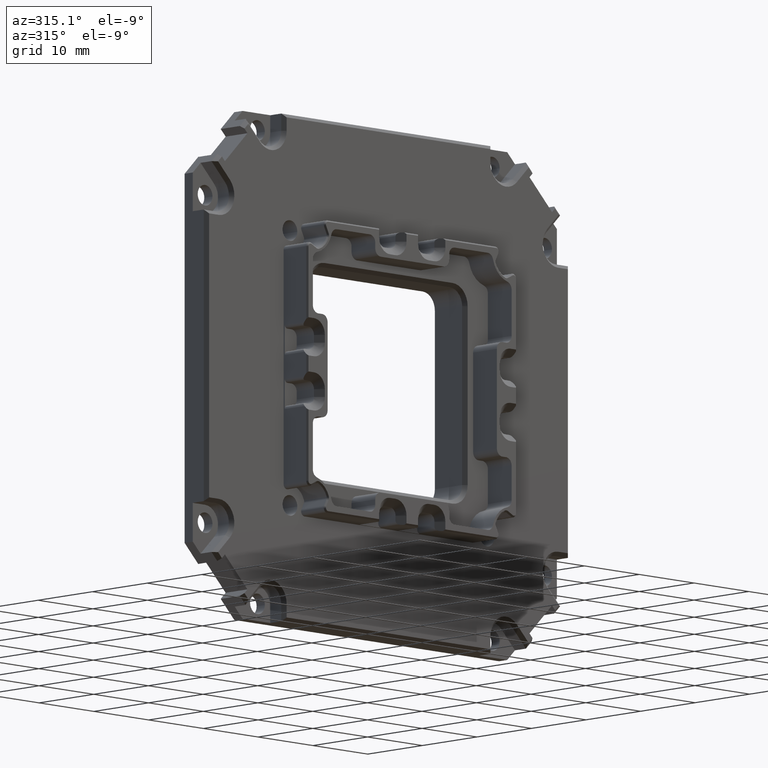
[diagram: clean part render]
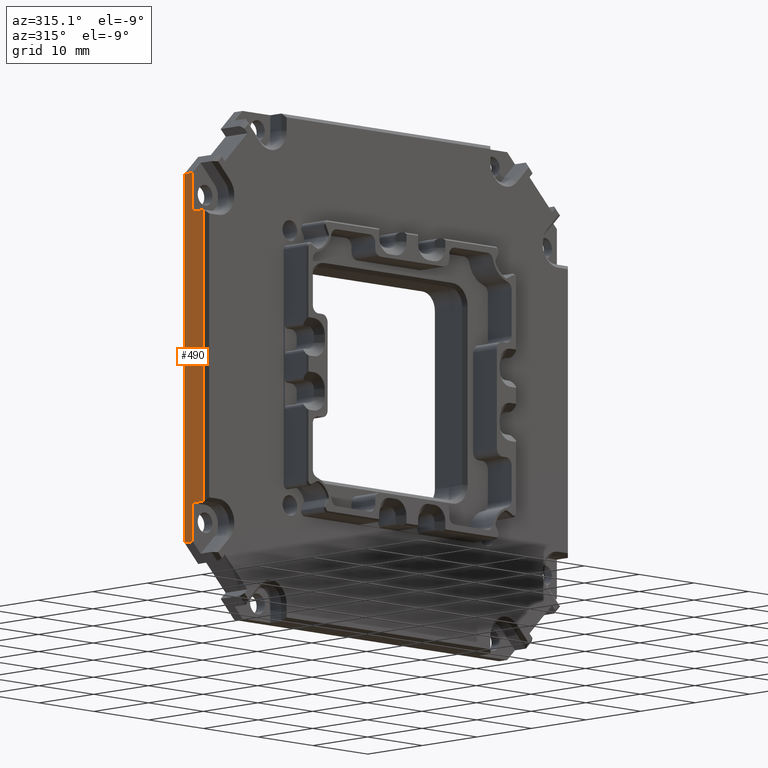
[diagram: same view with one face highlighted and labeled with its STEP entity id]
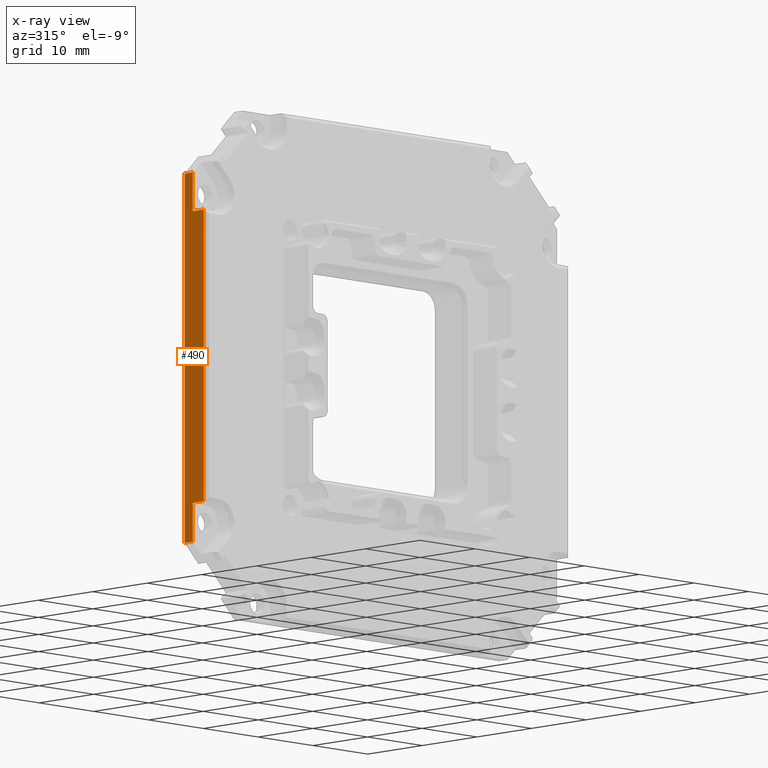
[diagram: x-ray of the same camera — body ghosted, the highlighted face saturated]
A machine part, auxiliary view. The second image highlights one B-rep face of the part: STEP entity #490.
The next image is the same camera in x-ray: the body ghosted, the highlighted face saturated — about 0% of this face is hidden behind the body in this view.
In plain terms, the highlighted planar face has unit normal (-1, 0, 0).
Its self-contained STEP definition (entity closure, byte-faithful):
#490=ADVANCED_FACE('',(#943),#4330,.T.);
#943=FACE_OUTER_BOUND('',#1411,.F.);
#1411=EDGE_LOOP('',(#2155,#2156,#2157,#2158,#2159,#2160,#2161,#2162));
#2155=ORIENTED_EDGE('',*,*,#6542,.T.);
#2156=ORIENTED_EDGE('',*,*,#6541,.T.);
#2157=ORIENTED_EDGE('',*,*,#6794,.F.);
#2158=ORIENTED_EDGE('',*,*,#6787,.F.);
#2159=ORIENTED_EDGE('',*,*,#6795,.T.);
#2160=ORIENTED_EDGE('',*,*,#6578,.T.);
#2161=ORIENTED_EDGE('',*,*,#6577,.T.);
#2162=ORIENTED_EDGE('',*,*,#6496,.T.);
#4330=PLANE('',#10499);
#6496=EDGE_CURVE('',#10100,#10088,#7704,.T.);
#6541=EDGE_CURVE('',#10009,#10008,#7745,.T.);
#6542=EDGE_CURVE('',#10088,#10009,#7746,.T.);
#6577=EDGE_CURVE('',#9979,#10100,#7769,.T.);
#6578=EDGE_CURVE('',#9978,#9979,#7770,.T.);
#6787=EDGE_CURVE('',#10022,#9763,#7875,.T.);
#6794=EDGE_CURVE('',#9763,#10008,#7882,.T.);
#6795=EDGE_CURVE('',#10022,#9978,#7883,.T.);
#7704=LINE('',#14256,#8552);
#7745=LINE('',#14301,#8593);
#7746=LINE('',#14302,#8594);
#7769=LINE('',#14337,#8617);
#7770=LINE('',#14338,#8618);
#7875=LINE('',#14547,#8723);
#7882=LINE('',#14554,#8730);
#7883=LINE('',#14555,#8731);
#8552=VECTOR('',#11044,38.1929938176759);
#8593=VECTOR('',#11093,5.0780317395533);
#8594=VECTOR('',#11094,2.);
#8617=VECTOR('',#11141,2.00000000000001);
#8618=VECTOR('',#11142,5.07371757831762);
#8723=VECTOR('',#11455,48.3447431355468);
#8730=VECTOR('',#11462,1.49999999999999);
#8731=VECTOR('',#11463,1.5);
#9763=VERTEX_POINT('',#13823);
#9978=VERTEX_POINT('',#14038);
#9979=VERTEX_POINT('',#14039);
#10008=VERTEX_POINT('',#14068);
#10009=VERTEX_POINT('',#14069);
#10022=VERTEX_POINT('',#14082);
#10088=VERTEX_POINT('',#14148);
#10100=VERTEX_POINT('',#14160);
#10499=AXIS2_PLACEMENT_3D('',#15666,#12503,#12504);
#11044=DIRECTION('',(0.,0.,-1.));
#11093=DIRECTION('',(0.,0.,-1.));
#11094=DIRECTION('',(0.,1.,0.));
#11141=DIRECTION('',(0.,-1.,0.));
#11142=DIRECTION('',(0.,0.,-1.));
#11455=DIRECTION('',(0.,0.,-1.));
#11462=DIRECTION('',(0.,-1.,0.));
#11463=DIRECTION('',(0.,-1.,0.));
#12503=DIRECTION('',(-1.,0.,0.));
#12504=DIRECTION('',(0.,0.,-1.));
#13823=CARTESIAN_POINT('',(-33.2500000000001,0.,-24.1723715677733));
#14038=CARTESIAN_POINT('',(-33.25,-1.49999999999999,24.1723715677734));
#14039=CARTESIAN_POINT('',(-33.25,-1.49999999999999,19.0986539894558));
#14068=CARTESIAN_POINT('',(-33.2500000000001,-1.50000000000001,-24.1723715677733));
#14069=CARTESIAN_POINT('',(-33.2500000000001,-1.50000000000001,-19.09433982822));
#14082=CARTESIAN_POINT('',(-33.25,0.,24.1723715677734));
#14148=CARTESIAN_POINT('',(-33.2500000000001,-3.50000000000001,-19.09433982822));
#14160=CARTESIAN_POINT('',(-33.2500000000001,-3.49999999999999,19.0986539894558));
#14256=CARTESIAN_POINT('',(-33.25,-3.49999999999999,19.0986539894558));
#14301=CARTESIAN_POINT('',(-33.2500000000001,-1.50000000000001,-19.09433982822));
#14302=CARTESIAN_POINT('',(-33.2500000000001,-3.50000000000001,-19.09433982822));
#14337=CARTESIAN_POINT('',(-33.25,-1.49999999999999,19.0986539894558));
#14338=CARTESIAN_POINT('',(-33.25,-1.49999999999999,24.1723715677734));
#14547=CARTESIAN_POINT('',(-33.25,0.,24.1723715677734));
#14554=CARTESIAN_POINT('',(-33.2500000000001,0.,-24.1723715677733));
#14555=CARTESIAN_POINT('',(-33.25,0.,24.1723715677734));
#15666=CARTESIAN_POINT('',(-33.25,0.483447431355475,24.6558189991289));